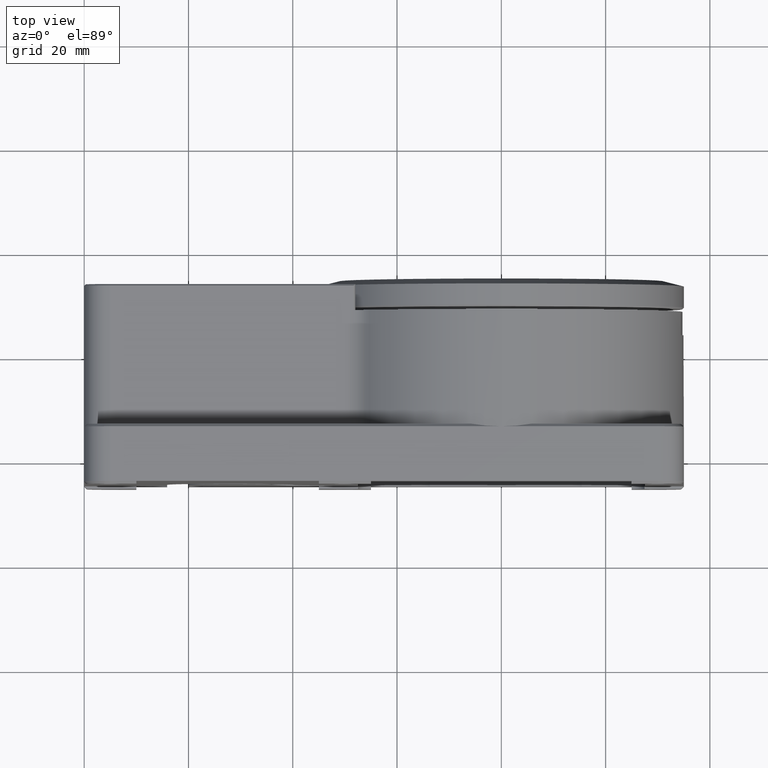
[diagram: clean part render]
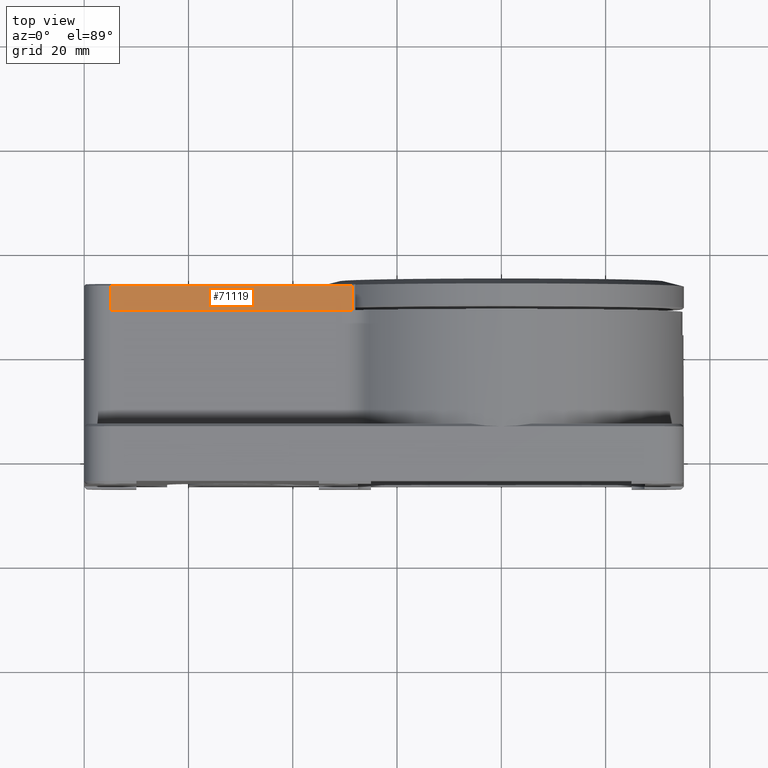
[diagram: same view with one face highlighted and labeled with its STEP entity id]
A machine part, top view. The second image highlights one B-rep face of the part: STEP entity #71119.
In plain terms, the highlighted planar face has unit normal (0, 0, -1).
Its self-contained STEP definition (entity closure, byte-faithful):
#3860 = VECTOR ( 'NONE', #11830, 1000.000000000000000 ) ;
#11045 = LINE ( 'NONE', #48892, #44381 ) ;
#11830 = DIRECTION ( 'NONE',  ( 0.0000000000000000000, -1.000000000000000000, 0.0000000000000000000 ) ) ;
#12278 = DIRECTION ( 'NONE',  ( 0.0000000000000000000, 0.0000000000000000000, -1.000000000000000000 ) ) ;
#13256 = CARTESIAN_POINT ( 'NONE',  ( -28.49561369754999900, 8.500000000000000000, 22.50000000000295200 ) ) ;
#15048 = VERTEX_POINT ( 'NONE', #25394 ) ;
#17050 = LINE ( 'NONE', #61962, #48408 ) ;
#17942 = VECTOR ( 'NONE', #32428, 1000.000000000000000 ) ;
#19354 = AXIS2_PLACEMENT_3D ( 'NONE', #49811, #12278, #56081 ) ;
#25394 = CARTESIAN_POINT ( 'NONE',  ( -75.00000000005499600, 8.500000000000000000, 22.50000000000000000 ) ) ;
#25607 = ORIENTED_EDGE ( 'NONE', *, *, #66384, .T. ) ;
#29818 = ORIENTED_EDGE ( 'NONE', *, *, #78461, .F. ) ;
#31297 = EDGE_CURVE ( 'NONE', #15048, #50573, #34633, .T. ) ;
#32428 = DIRECTION ( 'NONE',  ( 0.0000000000000000000, 1.000000000000000000, 0.0000000000000000000 ) ) ;
#34157 = ORIENTED_EDGE ( 'NONE', *, *, #31297, .F. ) ;
#34633 = LINE ( 'NONE', #63283, #17942 ) ;
#35968 = EDGE_CURVE ( 'NONE', #62298, #65012, #70529, .T. ) ;
#36866 = FACE_OUTER_BOUND ( 'NONE', #52800, .T. ) ;
#44381 = VECTOR ( 'NONE', #55182, 1000.000000000000000 ) ;
#48408 = VECTOR ( 'NONE', #68283, 1000.000000000000000 ) ;
#48892 = CARTESIAN_POINT ( 'NONE',  ( -26.95550192843999700, 8.500000000000000000, 22.50000000000000000 ) ) ;
#49811 = CARTESIAN_POINT ( 'NONE',  ( -27.56552597149999800, 8.210501398967000600, 22.50000000000000000 ) ) ;
#50573 = VERTEX_POINT ( 'NONE', #71736 ) ;
#52800 = EDGE_LOOP ( 'NONE', ( #25607, #73318, #29818, #34157 ) ) ;
#55182 = DIRECTION ( 'NONE',  ( 1.000000000000000000, -0.0000000000000000000, 0.0000000000000000000 ) ) ;
#56081 = DIRECTION ( 'NONE',  ( -1.000000000000000000, 0.0000000000000000000, -0.0000000000000000000 ) ) ;
#61962 = CARTESIAN_POINT ( 'NONE',  ( -75.93925287743999800, 13.20000000000125000, 22.49999999999874900 ) ) ;
#62086 = PLANE ( 'NONE',  #19354 ) ;
#62298 = VERTEX_POINT ( 'NONE', #75473 ) ;
#63283 = CARTESIAN_POINT ( 'NONE',  ( -75.00000000011000600, 8.210501398967000600, 22.50000000000000000 ) ) ;
#65012 = VERTEX_POINT ( 'NONE', #13256 ) ;
#66384 = EDGE_CURVE ( 'NONE', #15048, #65012, #11045, .T. ) ;
#68283 = DIRECTION ( 'NONE',  ( 1.000000000000000000, 0.0000000000000000000, 0.0000000000000000000 ) ) ;
#70529 = LINE ( 'NONE', #80590, #3860 ) ;
#71119 = ADVANCED_FACE ( 'NONE', ( #36866 ), #62086, .F. ) ;
#71736 = CARTESIAN_POINT ( 'NONE',  ( -75.00000000005499600, 13.20000000041867600, 22.49999999958164000 ) ) ;
#73318 = ORIENTED_EDGE ( 'NONE', *, *, #35968, .F. ) ;
#75473 = CARTESIAN_POINT ( 'NONE',  ( -28.49561369754999900, 13.19999999999767400, 22.50000000000411400 ) ) ;
#78461 = EDGE_CURVE ( 'NONE', #50573, #62298, #17050, .T. ) ;
#80590 = CARTESIAN_POINT ( 'NONE',  ( -28.49561369754999900, 13.50000000000003600, 22.50000000000590500 ) ) ;